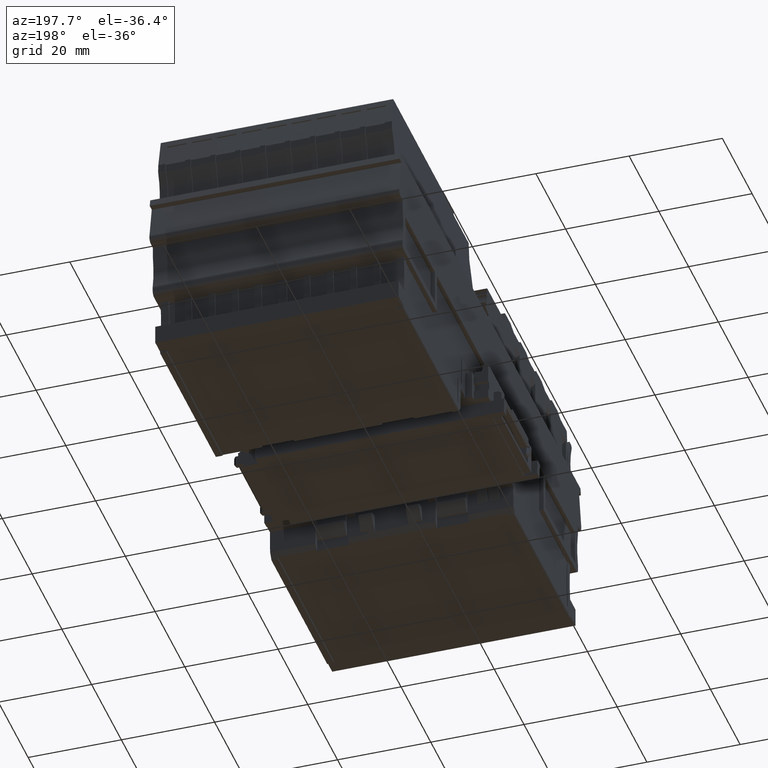
[diagram: clean part render]
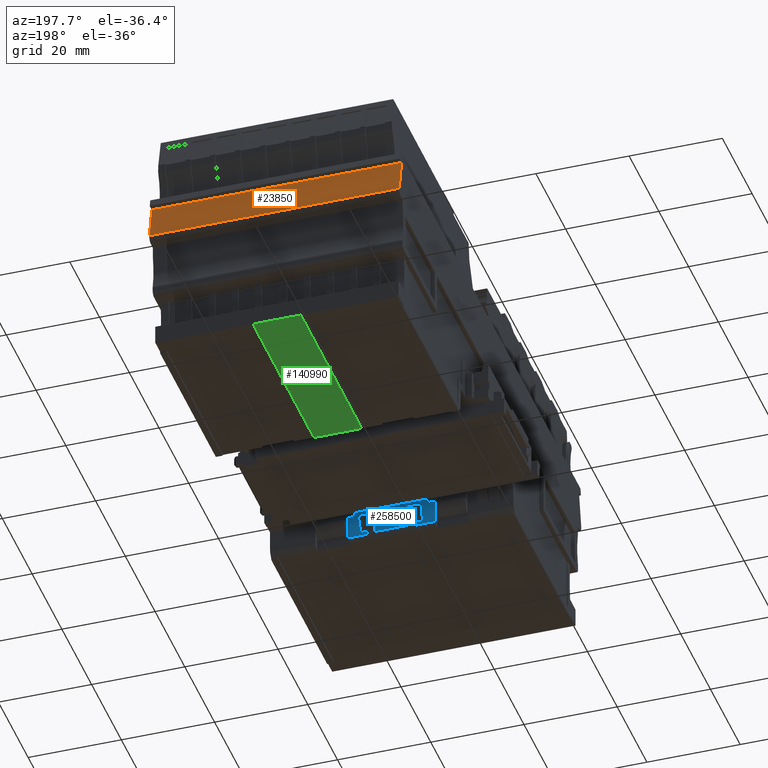
[diagram: same view with three faces highlighted in distinct colors, each labeled with its STEP entity id]
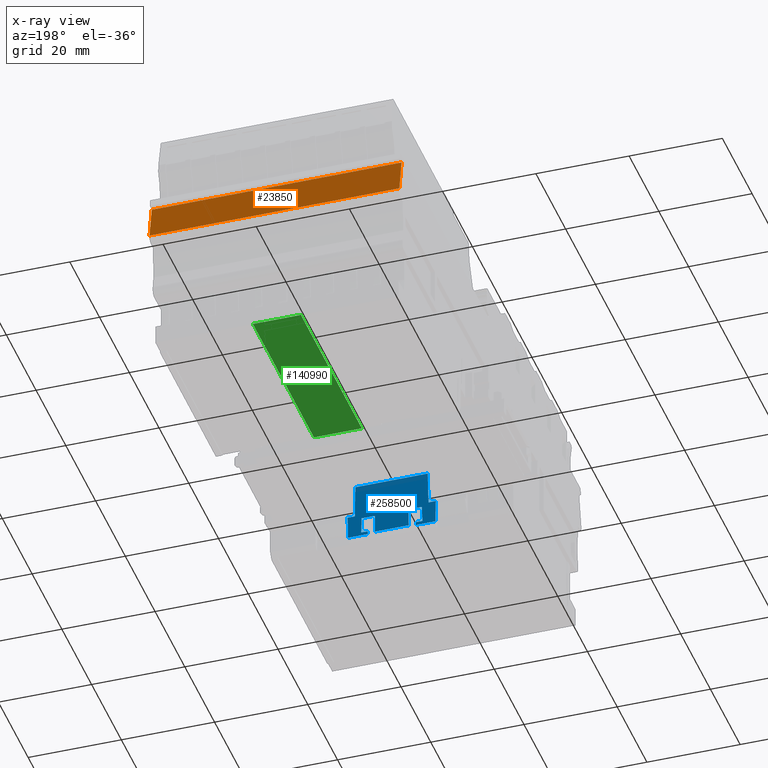
[diagram: x-ray of the same camera — body ghosted, the three highlighted faces saturated]
A machine part, auxiliary view with three faces highlighted in distinct colors.
The next image is the same camera in x-ray (body ghosted, the three faces saturated) — at least one of them is partly hidden behind the body in this view.
Their STEP definitions:

[orange] entity #23850 — the highlighted planar face has unit normal (-0, -0.9806, -0.1959).
#11410=CARTESIAN_POINT('',(82.4878789279563,30.0489460953733,
-49.8999999994882));
#11420=VERTEX_POINT('',#11410);
#11450=CARTESIAN_POINT('',(92.4256177035313,0.,-49.899999999497));
#11460=DIRECTION('',(0.313992455966276,-0.949425477642277,
-2.76750844463436E-13));
#11470=VECTOR('',#11460,1.);
#11480=LINE('',#11450,#11470);
#11490=CARTESIAN_POINT('',(80.0477578688488,37.4271905659888,
-49.8999999994861));
#11500=VERTEX_POINT('',#11490);
#11510=EDGE_CURVE('',#11500,#11420,#11480,.T.);
#14830=CARTESIAN_POINT('',(80.0477578691713,37.4271905661686,0.));
#14840=DIRECTION('',(6.46288353377226E-12,3.6030201472743E-12,1.));
#14850=VECTOR('',#14840,1.);
#14860=LINE('',#14830,#14850);
#14870=CARTESIAN_POINT('',(80.0477578691952,37.4271905661819,
3.70000000052384));
#14880=VERTEX_POINT('',#14870);
#14890=EDGE_CURVE('',#11500,#14880,#14860,.T.);
#16380=CARTESIAN_POINT('',(82.4878789283654,30.0489460953767,
3.70000000052176));
#16390=VERTEX_POINT('',#16380);
#18670=CARTESIAN_POINT('',(92.4256177039416,0.,3.70000000051327));
#18680=DIRECTION('',(0.313992455966276,-0.949425477642277,
-2.68035593720128E-13));
#18690=VECTOR('',#18680,1.);
#18700=LINE('',#18670,#18690);
#18710=EDGE_CURVE('',#14880,#16390,#18700,.T.);
#23690=CARTESIAN_POINT('',(82.3056784645849,30.5998694017502,
-42.2872862014675));
#23700=DIRECTION('',(-0.949425477642277,-0.313992455966276,
7.26734743093677E-12));
#23710=DIRECTION('',(-0.313992455966276,0.949425477642277,
8.40372665334503E-13));
#23720=AXIS2_PLACEMENT_3D('',#23690,#23700,#23710);
#23730=PLANE('',#23720);
#23740=ORIENTED_EDGE('',*,*,#18710,.T.);
#23750=ORIENTED_EDGE('',*,*,#14890,.T.);
#23760=ORIENTED_EDGE('',*,*,#11510,.F.);
#23770=CARTESIAN_POINT('',(82.4878789283372,30.0489460953765,
-1.45346948618735E-11));
#23780=DIRECTION('',(-7.63305215815575E-12,-6.47570966275768E-14,-1.));
#23790=VECTOR('',#23780,1.);
#23800=LINE('',#23770,#23790);
#23810=EDGE_CURVE('',#16390,#11420,#23800,.T.);
#23820=ORIENTED_EDGE('',*,*,#23810,.T.);
#23830=EDGE_LOOP('',(#23820,#23760,#23750,#23740));
#23840=FACE_OUTER_BOUND('',#23830,.T.);
#23850=ADVANCED_FACE('',(#23840),#23730,.F.);

[blue] entity #258500 — the highlighted planar face has unit normal (-0, 0.9998, -0.0175).
#109080=CARTESIAN_POINT('',(7.19920871411026,-4.59257785931027,
-13.7150091852963));
#109090=VERTEX_POINT('',#109080);
#109120=CARTESIAN_POINT('',(7.19920871410661,-4.59257785827661,0.));
#109130=DIRECTION('',(2.66042781682641E-13,-7.53666815640071E-11,-1.));
#109140=VECTOR('',#109130,1.);
#109150=LINE('',#109120,#109140);
#109160=CARTESIAN_POINT('',(7.19920871411139,-4.59257785962992,
-17.9562647068434));
#109170=VERTEX_POINT('',#109160);
#109180=EDGE_CURVE('',#109090,#109170,#109150,.T.);
#113790=CARTESIAN_POINT('',(7.17139108324133,-4.32791078139207,
-19.4716710764279));
#113800=VERTEX_POINT('',#113790);
#113830=CARTESIAN_POINT('',(7.17139108341805,-4.3279107816552,0.));
#113840=DIRECTION('',(-9.07563571293547E-12,1.35134522470967E-11,-1.));
#113850=VECTOR('',#113840,1.);
#113860=LINE('',#113830,#113850);
#113870=CARTESIAN_POINT('',(7.17139108317547,-4.327910781294,
-26.7283288758834));
#113880=VERTEX_POINT('',#113870);
#113890=EDGE_CURVE('',#113800,#113880,#113860,.T.);
#116610=CARTESIAN_POINT('',(6.75652327540709,-0.380707258105776,
-29.5579156452635));
#116620=VERTEX_POINT('',#116610);
#116650=CARTESIAN_POINT('',(6.71650933018347,0.,-29.5478930885989));
#116660=DIRECTION('',(0.104492654879211,-0.994181201302335,
-0.02617296416803));
#116670=VECTOR('',#116660,1.);
#116680=LINE('',#116650,#116670);
#116690=CARTESIAN_POINT('',(7.12415974738237,-3.87853463911586,
-29.6499999761573));
#116700=VERTEX_POINT('',#116690);
#116710=EDGE_CURVE('',#116620,#116700,#116680,.T.);
#119240=CARTESIAN_POINT('',(7.12415974739359,-3.87853463912065,
-28.249999976471));
#119250=VERTEX_POINT('',#119240);
#119280=CARTESIAN_POINT('',(6.71650933019315,0.,-28.2840286932093));
#119290=DIRECTION('',(0.104524484357366,-0.994484038555339,
0.008725206501276));
#119300=VECTOR('',#119290,1.);
#119310=LINE('',#119280,#119300);
#119320=CARTESIAN_POINT('',(7.19553915084669,-4.55766429809138,
-28.2440415635796));
#119330=VERTEX_POINT('',#119320);
#119340=EDGE_CURVE('',#119250,#119330,#119310,.T.);
#119570=CARTESIAN_POINT('',(7.12415974762002,-3.87853463921733,0.));
#119580=DIRECTION('',(8.01504139338398E-12,-3.42257135290398E-12,1.));
#119590=VECTOR('',#119580,1.);
#119600=LINE('',#119570,#119590);
#119610=EDGE_CURVE('',#116700,#119250,#119600,.T.);
#123410=CARTESIAN_POINT('',(7.12415974747615,-3.8785346391559,
-17.9499999762748));
#123420=VERTEX_POINT('',#123410);
#123450=CARTESIAN_POINT('',(7.12415974762002,-3.87853463921733,0.));
#123460=DIRECTION('',(8.01504139338398E-12,-3.42257135290398E-12,1.));
#123470=VECTOR('',#123460,1.);
#123480=LINE('',#123450,#123470);
#123490=CARTESIAN_POINT('',(7.12415974748737,-3.87853463916069,
-16.5499999761575));
#123500=VERTEX_POINT('',#123490);
#123510=EDGE_CURVE('',#123420,#123500,#123480,.T.);
#129790=CARTESIAN_POINT('',(6.75652327567331,-0.380707258485869,0.));
#129800=DIRECTION('',(9.00687706876803E-12,-1.28592574471158E-11,1.));
#129810=VECTOR('',#129800,1.);
#129820=LINE('',#129790,#129810);
#129830=CARTESIAN_POINT('',(6.75652327543272,-0.380707258142378,
-26.7115689606911));
#129840=VERTEX_POINT('',#129830);
#129850=EDGE_CURVE('',#116620,#129840,#129820,.T.);
#130780=CARTESIAN_POINT('',(6.71650933019315,0.,-28.2840286932093));
#130790=DIRECTION('',(-0.104524484357366,0.994484038555339,
-0.008725206501276));
#130800=VECTOR('',#130790,1.);
#130810=LINE('',#130780,#130800);
#130820=CARTESIAN_POINT('',(7.19920871411413,-4.59257786040525,
-28.2437352459022));
#130830=VERTEX_POINT('',#130820);
#130840=EDGE_CURVE('',#130830,#119330,#130810,.T.);
#132030=CARTESIAN_POINT('',(7.19553915087314,-4.55766429759366,
-17.9559583891681));
#132040=VERTEX_POINT('',#132030);
#152620=CARTESIAN_POINT('',(6.66939150827178,0.448296131112307,
-13.6265492106144));
#152630=VERTEX_POINT('',#152620);
#152660=CARTESIAN_POINT('',(6.71650933030529,0.,-13.6344161528318));
#152670=DIRECTION('',(0.104512547925244,-0.994370470991757,
-0.0174497491616544));
#152680=VECTOR('',#152670,1.);
#152690=LINE('',#152660,#152680);
#152700=EDGE_CURVE('',#152630,#109090,#152690,.T.);
#243720=CARTESIAN_POINT('',(6.66939150812812,0.4482961310991,
-32.573450766653));
#243730=VERTEX_POINT('',#243720);
#244030=CARTESIAN_POINT('',(7.19920871411526,-4.5925778607249,
-32.4849907919506));
#244040=VERTEX_POINT('',#244030);
#244070=CARTESIAN_POINT('',(6.71650933016037,0.,-32.5655838244361));
#244080=DIRECTION('',(-0.10451254792551,0.994370470991744,
-0.017449749160826));
#244090=VECTOR('',#244080,1.);
#244100=LINE('',#244070,#244090);
#244110=EDGE_CURVE('',#244040,#243730,#244100,.T.);
#244470=CARTESIAN_POINT('',(6.6693915083751,0.448296131121775,0.));
#244480=DIRECTION('',(-7.58228441211286E-12,-6.94836286978519E-13,-1.));
#244490=VECTOR('',#244480,1.);
#244500=LINE('',#244470,#244490);
#244510=CARTESIAN_POINT('',(6.66939150825984,0.448296131111214,
-15.2000000012369));
#244520=VERTEX_POINT('',#244510);
#244530=EDGE_CURVE('',#152630,#244520,#244500,.T.);
#244980=CARTESIAN_POINT('',(5.91144471060329,7.65967820084707,
-15.3265492219699));
#244990=VERTEX_POINT('',#244980);
#245020=CARTESIAN_POINT('',(6.71650933029337,0.,-15.1921330590195));
#245030=DIRECTION('',(-0.104512547925509,0.994370470991734,
-0.0174497491614001));
#245040=VECTOR('',#245030,1.);
#245050=LINE('',#245020,#245040);
#245060=EDGE_CURVE('',#244520,#244990,#245050,.T.);
#246700=CARTESIAN_POINT('',(6.7165093301723,0.,-31.0078669418289));
#246710=DIRECTION('',(-0.104512547925247,0.994370470991786,
0.0174497491599661));
#246720=VECTOR('',#246710,1.);
#246730=LINE('',#246700,#246720);
#246740=CARTESIAN_POINT('',(6.66939150814005,0.448296131100193,
-30.9999999996124));
#246750=VERTEX_POINT('',#246740);
#246760=CARTESIAN_POINT('',(5.91144471048721,7.65967820081912,
-30.8734507788901));
#246770=VERTEX_POINT('',#246760);
#246780=EDGE_CURVE('',#246750,#246770,#246730,.T.);
#247110=CARTESIAN_POINT('',(6.6693915083751,0.448296131121733,0.));
#247120=DIRECTION('',(-7.58228441211286E-12,-6.94836286978519E-13,-1.));
#247130=VECTOR('',#247120,1.);
#247140=LINE('',#247110,#247130);
#247150=EDGE_CURVE('',#246750,#243730,#247140,.T.);
#254320=CARTESIAN_POINT('',(6.71650933027252,0.,-17.9159712594991));
#254330=DIRECTION('',(-0.104524484357225,0.99448403855527,
0.00872520651080239));
#254340=VECTOR('',#254330,1.);
#254350=LINE('',#254320,#254340);
#254360=EDGE_CURVE('',#132040,#123420,#254350,.T.);
#255160=CARTESIAN_POINT('',(6.71650933027252,0.,-17.9159712594991));
#255170=DIRECTION('',(0.104524484357225,-0.99448403855527,
-0.00872520651080239));
#255180=VECTOR('',#255170,1.);
#255190=LINE('',#255160,#255180);
#255200=EDGE_CURVE('',#132040,#109170,#255190,.T.);
#256450=CARTESIAN_POINT('',(6.71650933028219,0.,-16.6521068636791));
#256460=DIRECTION('',(0.104492654879634,-0.994181201302546,
0.0261729641583096));
#256470=VECTOR('',#256460,1.);
#256480=LINE('',#256450,#256470);
#256490=CARTESIAN_POINT('',(6.75652327552342,-0.380707258271864,
-16.6420843070139));
#256500=VERTEX_POINT('',#256490);
#256510=EDGE_CURVE('',#256500,#123500,#256480,.T.);
#257110=CARTESIAN_POINT('',(6.75652327567331,-0.380707258485869,0.));
#257120=DIRECTION('',(9.00687706876803E-12,-1.28592574471158E-11,1.));
#257130=VECTOR('',#257120,1.);
#257140=LINE('',#257110,#257130);
#257150=CARTESIAN_POINT('',(6.75652327549778,-0.380707258235263,
-19.4884309915817));
#257160=VERTEX_POINT('',#257150);
#257170=EDGE_CURVE('',#257160,#256500,#257140,.T.);
#257490=CARTESIAN_POINT('',(6.71650933026047,0.,-19.4900474831837));
#257500=DIRECTION('',(0.104527531319897,-0.994513028467665,
0.00422272474136136));
#257510=VECTOR('',#257500,1.);
#257520=LINE('',#257490,#257510);
#257530=EDGE_CURVE('',#257160,#113800,#257520,.T.);
#258060=CARTESIAN_POINT('',(6.66939161276886,0.44829513637012,
-20.7499999803578));
#258070=DIRECTION('',(0.994521895368168,0.104528463268661,
-7.61337803405616E-12));
#258080=DIRECTION('',(0.104528463268661,-0.994521895368168,
-1.44669640768993E-13));
#258090=AXIS2_PLACEMENT_3D('',#258060,#258070,#258080);
#258100=PLANE('',#258090);
#258110=ORIENTED_EDGE('',*,*,#116710,.T.);
#258120=ORIENTED_EDGE('',*,*,#129850,.F.);
#258130=CARTESIAN_POINT('',(6.7165093302052,0.,-26.7099524690858));
#258140=DIRECTION('',(-0.104527531319829,0.994513028467631,
0.00422272475108052));
#258150=VECTOR('',#258140,1.);
#258160=LINE('',#258130,#258150);
#258170=EDGE_CURVE('',#113880,#129840,#258160,.T.);
#258180=ORIENTED_EDGE('',*,*,#258170,.T.);
#258190=ORIENTED_EDGE('',*,*,#113890,.T.);
#258200=ORIENTED_EDGE('',*,*,#257530,.T.);
#258210=ORIENTED_EDGE('',*,*,#257170,.F.);
#258220=ORIENTED_EDGE('',*,*,#256510,.F.);
#258230=ORIENTED_EDGE('',*,*,#123510,.T.);
#258240=ORIENTED_EDGE('',*,*,#254360,.T.);
#258250=ORIENTED_EDGE('',*,*,#255200,.F.);
#258260=ORIENTED_EDGE('',*,*,#109180,.T.);
#258270=ORIENTED_EDGE('',*,*,#152700,.T.);
#258280=ORIENTED_EDGE('',*,*,#244530,.F.);
#258290=ORIENTED_EDGE('',*,*,#245060,.F.);
#258300=CARTESIAN_POINT('',(5.91144471071773,7.65967820087462,0.));
#258310=DIRECTION('',(7.46637932009758E-12,1.79759957450135E-12,1.));
#258320=VECTOR('',#258310,1.);
#258330=LINE('',#258300,#258320);
#258340=EDGE_CURVE('',#246770,#244990,#258330,.T.);
#258350=ORIENTED_EDGE('',*,*,#258340,.T.);
#258360=ORIENTED_EDGE('',*,*,#246780,.T.);
#258370=ORIENTED_EDGE('',*,*,#247150,.F.);
#258380=ORIENTED_EDGE('',*,*,#244110,.T.);
#258390=CARTESIAN_POINT('',(7.19920871410661,-4.59257785827661,0.));
#258400=DIRECTION('',(2.66042781682641E-13,-7.53666815640071E-11,-1.));
#258410=VECTOR('',#258400,1.);
#258420=LINE('',#258390,#258410);
#258430=EDGE_CURVE('',#130830,#244040,#258420,.T.);
#258440=ORIENTED_EDGE('',*,*,#258430,.T.);
#258450=ORIENTED_EDGE('',*,*,#130840,.F.);
#258460=ORIENTED_EDGE('',*,*,#119340,.T.);
#258470=ORIENTED_EDGE('',*,*,#119610,.T.);
#258480=EDGE_LOOP('',(#258470,#258460,#258450,#258440,#258380,#258370,
#258360,#258350,#258290,#258280,#258270,#258260,#258250,#258240,#258230,
#258220,#258210,#258200,#258190,#258180,#258120,#258110));
#258490=FACE_OUTER_BOUND('',#258480,.T.);
#258500=ADVANCED_FACE('',(#258490),#258100,.T.);

[green] entity #140990 — the highlighted planar face has unit normal (-0, -0, -1).
#120390=CARTESIAN_POINT('',(43.3019921497185,-1.08877047973918,
-28.2356879205728));
#120400=VERTEX_POINT('',#120390);
#120990=CARTESIAN_POINT('',(43.3019921494129,-1.08877047978019,
-17.964312029289));
#121000=VERTEX_POINT('',#120990);
#121030=CARTESIAN_POINT('',(43.3019921488783,-1.08877047985192,0.));
#121040=DIRECTION('',(-2.9755266379796E-11,-3.99266373246629E-12,1.));
#121050=VECTOR('',#121040,1.);
#121060=LINE('',#121030,#121050);
#121070=EDGE_CURVE('',#120400,#121000,#121060,.T.);
#123740=CARTESIAN_POINT('',(84.0130941421063,3.9099243022775,0.));
#123750=DIRECTION('',(-7.53248026409569E-12,-5.85695866278797E-13,-1.));
#123760=VECTOR('',#123750,1.);
#123770=LINE('',#123740,#123760);
#123780=CARTESIAN_POINT('',(84.0130941419709,3.90992430226698,
-17.9643120286035));
#123790=VERTEX_POINT('',#123780);
#123800=CARTESIAN_POINT('',(84.0130941418936,3.90992430226097,
-28.235687919424));
#123810=VERTEX_POINT('',#123800);
#123820=EDGE_CURVE('',#123790,#123810,#123770,.T.);
#140600=CARTESIAN_POINT('',(0.,-6.40558657208207,-28.2356879217947));
#140610=DIRECTION('',(0.99254615164127,0.121869343405569,
2.80076634875013E-11));
#140620=VECTOR('',#140610,1.);
#140630=LINE('',#140600,#140620);
#140640=EDGE_CURVE('',#120400,#123810,#140630,.T.);
#140830=CARTESIAN_POINT('',(-13.7160918481336,-8.08971088696673,
-23.099999976854));
#140840=DIRECTION('',(0.121869343405569,-0.99254615164127,
-3.36648245893532E-13));
#140850=DIRECTION('',(-0.99254615164127,-0.121869343405569,
2.32416237564204E-12));
#140860=AXIS2_PLACEMENT_3D('',#140830,#140840,#140850);
#140870=PLANE('',#140860);
#140880=CARTESIAN_POINT('',(0.,-6.40558657208555,-17.9643120300181));
#140890=DIRECTION('',(-0.99254615164127,-0.121869343405569,
-1.67126223272076E-11));
#140900=VECTOR('',#140890,1.);
#140910=LINE('',#140880,#140900);
#140920=EDGE_CURVE('',#123790,#121000,#140910,.T.);
#140930=ORIENTED_EDGE('',*,*,#140920,.T.);
#140940=ORIENTED_EDGE('',*,*,#123820,.F.);
#140950=ORIENTED_EDGE('',*,*,#140640,.T.);
#140960=ORIENTED_EDGE('',*,*,#121070,.F.);
#140970=EDGE_LOOP('',(#140960,#140950,#140940,#140930));
#140980=FACE_OUTER_BOUND('',#140970,.T.);
#140990=ADVANCED_FACE('',(#140980),#140870,.T.);